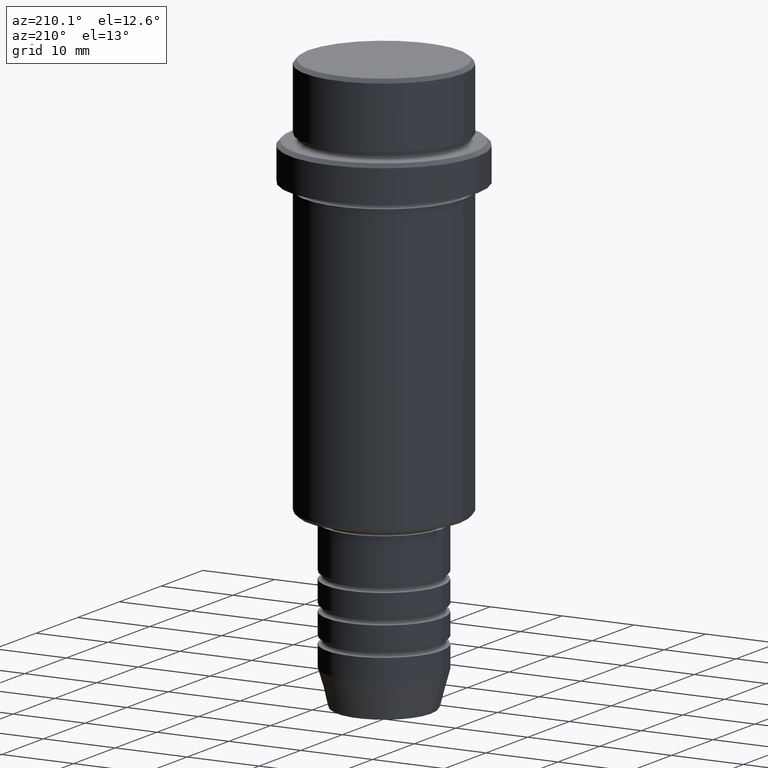
[diagram: clean part render]
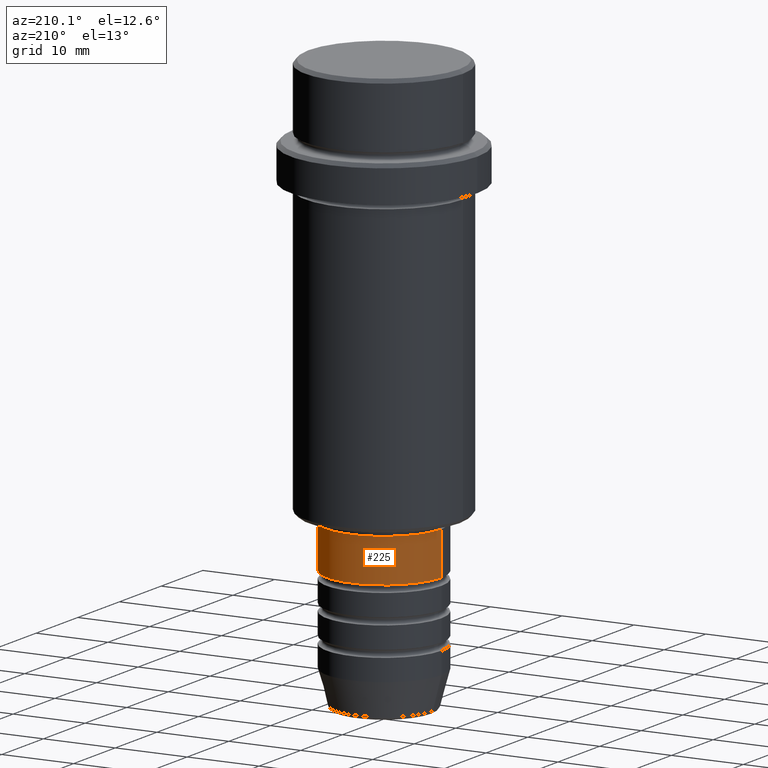
[diagram: same view with one face highlighted and labeled with its STEP entity id]
A machine part, auxiliary view. The second image highlights one B-rep face of the part: STEP entity #225.
In plain terms, the highlighted cylindrical surface (partial cylindrical patch) has radius 8 mm, axis along (-0, -0, 1).
Its self-contained STEP definition (entity closure, byte-faithful):
#21 = EDGE_CURVE ( 'NONE', #724, #454, #198, .T. ) ;
#28 = AXIS2_PLACEMENT_3D ( 'NONE', #1107, #214, #319 ) ;
#58 = ORIENTED_EDGE ( 'NONE', *, *, #489, .F. ) ;
#115 = VECTOR ( 'NONE', #865, 1000.000000000000000 ) ;
#176 = EDGE_CURVE ( 'NONE', #178, #454, #1210, .T. ) ;
#178 = VERTEX_POINT ( 'NONE', #641 ) ;
#181 = LINE ( 'NONE', #973, #778 ) ;
#198 = LINE ( 'NONE', #530, #115 ) ;
#214 = DIRECTION ( 'NONE',  ( -0.000000000000000000, -0.000000000000000000, 1.000000000000000000 ) ) ;
#225 = ADVANCED_FACE ( 'NONE', ( #656 ), #547, .T. ) ;
#319 = DIRECTION ( 'NONE',  ( 1.000000000000000000, 0.000000000000000000, 0.000000000000000000 ) ) ;
#364 = CARTESIAN_POINT ( 'NONE',  ( 8.000000000000000000, 0.000000000000000000, -62.99999999999988631 ) ) ;
#377 = AXIS2_PLACEMENT_3D ( 'NONE', #1405, #642, #526 ) ;
#454 = VERTEX_POINT ( 'NONE', #1079 ) ;
#489 = EDGE_CURVE ( 'NONE', #1374, #178, #181, .T. ) ;
#526 = DIRECTION ( 'NONE',  ( 1.000000000000000000, 0.000000000000000000, 0.000000000000000000 ) ) ;
#530 = CARTESIAN_POINT ( 'NONE',  ( -8.000000000000000000, 9.797174393178825657E-16, 0.000000000000000000 ) ) ;
#547 = CYLINDRICAL_SURFACE ( 'NONE', #981, 8.000000000000000000 ) ;
#569 = ORIENTED_EDGE ( 'NONE', *, *, #176, .F. ) ;
#641 = CARTESIAN_POINT ( 'NONE',  ( 8.000000000000000000, 0.000000000000000000, -57.00000000000000000 ) ) ;
#642 = DIRECTION ( 'NONE',  ( -0.000000000000000000, -0.000000000000000000, 1.000000000000000000 ) ) ;
#656 = FACE_OUTER_BOUND ( 'NONE', #829, .T. ) ;
#724 = VERTEX_POINT ( 'NONE', #910 ) ;
#765 = DIRECTION ( 'NONE',  ( 1.000000000000000000, 0.000000000000000000, 0.000000000000000000 ) ) ;
#770 = DIRECTION ( 'NONE',  ( -0.000000000000000000, -0.000000000000000000, 1.000000000000000000 ) ) ;
#778 = VECTOR ( 'NONE', #1397, 1000.000000000000000 ) ;
#829 = EDGE_LOOP ( 'NONE', ( #1187, #928, #569, #58 ) ) ;
#865 = DIRECTION ( 'NONE',  ( -0.000000000000000000, -0.000000000000000000, 1.000000000000000000 ) ) ;
#910 = CARTESIAN_POINT ( 'NONE',  ( -8.000000000000000000, 9.797174393178825657E-16, -62.99999999999988631 ) ) ;
#928 = ORIENTED_EDGE ( 'NONE', *, *, #21, .T. ) ;
#973 = CARTESIAN_POINT ( 'NONE',  ( 8.000000000000000000, 0.000000000000000000, 0.000000000000000000 ) ) ;
#981 = AXIS2_PLACEMENT_3D ( 'NONE', #993, #770, #765 ) ;
#993 = CARTESIAN_POINT ( 'NONE',  ( 0.000000000000000000, 0.000000000000000000, 0.000000000000000000 ) ) ;
#1079 = CARTESIAN_POINT ( 'NONE',  ( -8.000000000000000000, 9.797174393178825657E-16, -57.00000000000000000 ) ) ;
#1107 = CARTESIAN_POINT ( 'NONE',  ( 0.000000000000000000, 0.000000000000000000, -57.00000000000000000 ) ) ;
#1152 = EDGE_CURVE ( 'NONE', #1374, #724, #1209, .T. ) ;
#1187 = ORIENTED_EDGE ( 'NONE', *, *, #1152, .T. ) ;
#1209 = CIRCLE ( 'NONE', #377, 8.000000000000000000 ) ;
#1210 = CIRCLE ( 'NONE', #28, 8.000000000000000000 ) ;
#1374 = VERTEX_POINT ( 'NONE', #364 ) ;
#1397 = DIRECTION ( 'NONE',  ( -0.000000000000000000, -0.000000000000000000, 1.000000000000000000 ) ) ;
#1405 = CARTESIAN_POINT ( 'NONE',  ( 0.000000000000000000, 0.000000000000000000, -62.99999999999988631 ) ) ;